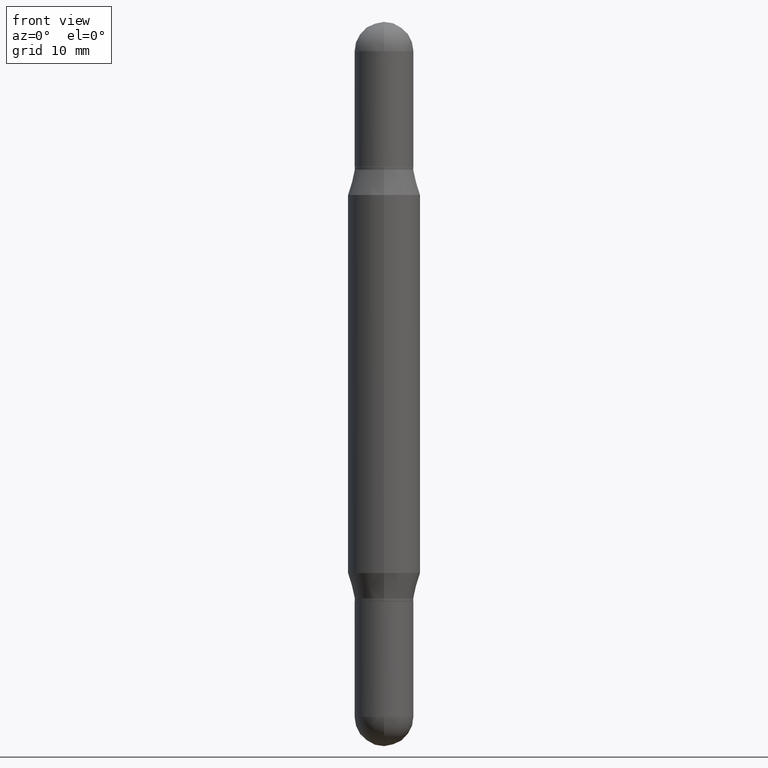
[diagram: clean part render]
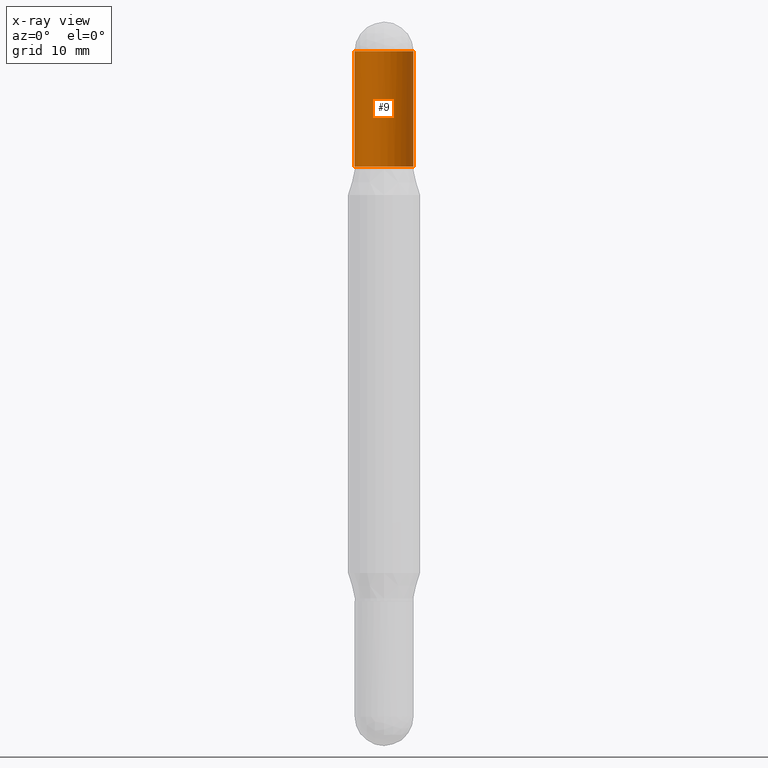
[diagram: x-ray — body ghosted, one internal face saturated and labeled with its STEP entity id]
A machine part, front view, then the same camera in x-ray: the body is ghosted and one INTERNAL B-rep face — a face not visible from any outside direction — is saturated and labeled: STEP entity #9.
In plain terms, the highlighted cylindrical surface (edge-blend (fillet) strip) has radius 2.5794 mm, axis along (-0, -0, -1).
Its self-contained STEP definition (entity closure, byte-faithful):
#7 = CIRCLE ( 'NONE', #334, 0.1015500000000000708 ) ;
#9 = ADVANCED_FACE ( 'NONE', ( #281 ), #970, .T. ) ;
#91 = EDGE_CURVE ( 'NONE', #321, #838, #640, .T. ) ;
#109 = DIRECTION ( 'NONE',  ( 1.000000000000000000, -6.982962677686269866E-15, 0.000000000000000000 ) ) ;
#115 = DIRECTION ( 'NONE',  ( 1.000000000000000000, -6.982962677686259611E-15, 0.000000000000000000 ) ) ;
#118 = AXIS2_PLACEMENT_3D ( 'NONE', #913, #1097, #763 ) ;
#138 = DIRECTION ( 'NONE',  ( -2.445468806185136877E-29, -3.479614466977828648E-15, -1.000000000000000000 ) ) ;
#140 = AXIS2_PLACEMENT_3D ( 'NONE', #908, #381, #737 ) ;
#151 = VERTEX_POINT ( 'NONE', #504 ) ;
#164 = EDGE_CURVE ( 'NONE', #838, #1100, #496, .T. ) ;
#198 = CARTESIAN_POINT ( 'NONE',  ( 0.000000000000000000, -8.713869757276216901E-15, -2.500000000000000000 ) ) ;
#235 = CARTESIAN_POINT ( 'NONE',  ( 0.1015500000000000985, -1.770534491055943548E-15, -0.1015499999999999042 ) ) ;
#272 = CARTESIAN_POINT ( 'NONE',  ( 7.091198599190993550E-16, 0.1015499999999996822, -0.1015500000000002651 ) ) ;
#281 = FACE_OUTER_BOUND ( 'NONE', #917, .T. ) ;
#301 = DIRECTION ( 'NONE',  ( 2.445468806185136597E-29, 3.479614466977828254E-15, 1.000000000000000000 ) ) ;
#313 = ORIENTED_EDGE ( 'NONE', *, *, #727, .T. ) ;
#321 = VERTEX_POINT ( 'NONE', #272 ) ;
#334 = AXIS2_PLACEMENT_3D ( 'NONE', #882, #301, #109 ) ;
#337 = ORIENTED_EDGE ( 'NONE', *, *, #164, .F. ) ;
#343 = EDGE_CURVE ( 'NONE', #476, #151, #1066, .T. ) ;
#381 = DIRECTION ( 'NONE',  ( 2.445468806185136597E-29, 3.479614466977828254E-15, 1.000000000000000000 ) ) ;
#389 = VECTOR ( 'NONE', #138, 39.37007874015748143 ) ;
#476 = VERTEX_POINT ( 'NONE', #235 ) ;
#491 = CARTESIAN_POINT ( 'NONE',  ( 0.1015500000000000708, -9.422989617195257683E-15, -2.500000000000000000 ) ) ;
#496 = LINE ( 'NONE', #836, #998 ) ;
#504 = CARTESIAN_POINT ( 'NONE',  ( 0.1015500000000000708, -2.463760683239602359E-15, -0.5000000000000001110 ) ) ;
#544 = DIRECTION ( 'NONE',  ( -2.445468806185136597E-29, -3.479614466977828254E-15, -1.000000000000000000 ) ) ;
#589 = DIRECTION ( 'NONE',  ( -2.445468806185136877E-29, -3.479614466977828648E-15, -1.000000000000000000 ) ) ;
#592 = AXIS2_PLACEMENT_3D ( 'NONE', #198, #544, #115 ) ;
#600 = EDGE_CURVE ( 'NONE', #476, #321, #1020, .T. ) ;
#640 = CIRCLE ( 'NONE', #118, 0.1015500000000000985 ) ;
#669 = CARTESIAN_POINT ( 'NONE',  ( -0.1015500000000000985, -3.647310594632026057E-16, -0.1015499999999999042 ) ) ;
#700 = ORIENTED_EDGE ( 'NONE', *, *, #600, .F. ) ;
#727 = EDGE_CURVE ( 'NONE', #151, #1100, #7, .T. ) ;
#737 = DIRECTION ( 'NONE',  ( 1.000000000000000000, -6.982962677686265922E-15, 0.000000000000000000 ) ) ;
#763 = DIRECTION ( 'NONE',  ( 1.000000000000000000, -6.982962677686265922E-15, 0.000000000000000000 ) ) ;
#792 = CARTESIAN_POINT ( 'NONE',  ( -0.1015500000000000708, -3.647310594632031974E-16, -0.5000000000000001110 ) ) ;
#824 = ORIENTED_EDGE ( 'NONE', *, *, #91, .F. ) ;
#836 = CARTESIAN_POINT ( 'NONE',  ( -0.1015500000000000708, -8.017186185602518861E-15, -2.500000000000000000 ) ) ;
#838 = VERTEX_POINT ( 'NONE', #669 ) ;
#882 = CARTESIAN_POINT ( 'NONE',  ( 4.890937612370273194E-29, -1.754640823320560985E-15, -0.5000000000000001110 ) ) ;
#908 = CARTESIAN_POINT ( 'NONE',  ( 5.865334658194741045E-29, -3.681884389532433645E-16, -0.1015499999999999042 ) ) ;
#913 = CARTESIAN_POINT ( 'NONE',  ( 5.865334658194741045E-29, -3.681884389532433645E-16, -0.1015499999999999042 ) ) ;
#917 = EDGE_LOOP ( 'NONE', ( #337, #824, #700, #931, #313 ) ) ;
#931 = ORIENTED_EDGE ( 'NONE', *, *, #343, .T. ) ;
#970 = CYLINDRICAL_SURFACE ( 'NONE', #592, 0.1015500000000000708 ) ;
#998 = VECTOR ( 'NONE', #589, 39.37007874015748143 ) ;
#1020 = CIRCLE ( 'NONE', #140, 0.1015500000000000985 ) ;
#1066 = LINE ( 'NONE', #491, #389 ) ;
#1097 = DIRECTION ( 'NONE',  ( 2.445468806185136597E-29, 3.479614466977828254E-15, 1.000000000000000000 ) ) ;
#1100 = VERTEX_POINT ( 'NONE', #792 ) ;